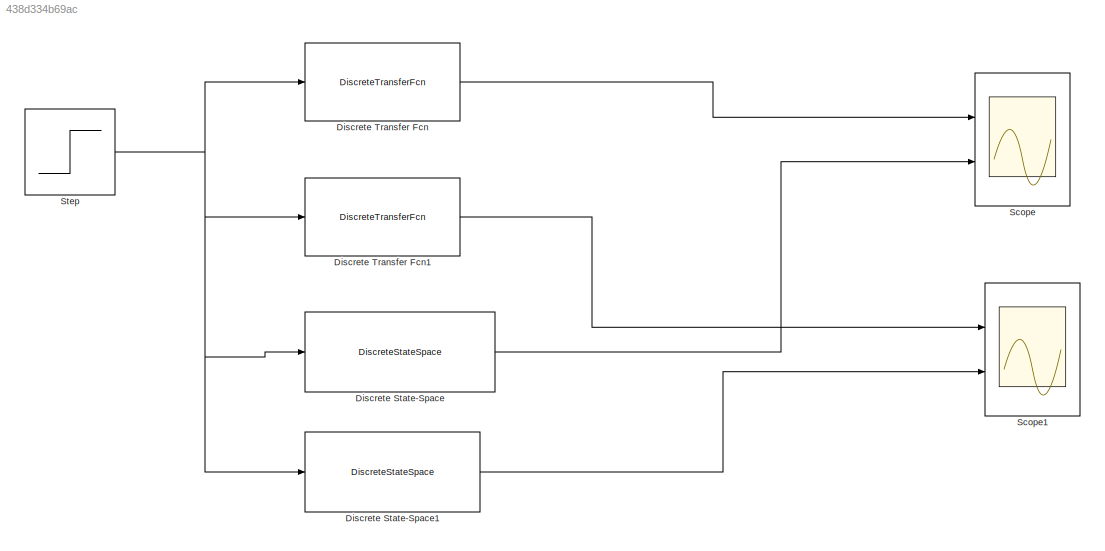
MODEL slx_438d334b69ac
KIND model
CONFIG AbsTol = auto
CONFIG EnableMultiTasking = off
CONFIG FixedStep = auto
CONFIG MaxStep = auto
CONFIG MinStep = auto
CONFIG RelTol = 1e-3
CONFIG SampleTimeConstraint = Unconstrained
CONFIG SolverName = VariableStepAuto
CONFIG StartTime = 0.0
CONFIG StopTime = 1000.0
BLOCK [DiscreteStateSpace] Discrete State-Space
  A = [1.582 -0.5916; 1 0]
  B = [1; 0]
  C = [1.69 1.419]
  D = 0
  SampleTime = -1
BLOCK [DiscreteStateSpace] Discrete State-Space1
  A = 0.9765
  C = 7.6230
  D = 0
BLOCK [DiscreteTransferFcn] Discrete Transfer Fcn
  Denominator = [1 -1.582 0.5916]
  InputPortMap = u0
  Numerator = [1.69 1.419]
  Ports = [1, 1]
BLOCK [DiscreteTransferFcn] Discrete Transfer Fcn1
  Denominator = [1 -0.9765]
  InputPortMap = u0
  Numerator = [7.623]
  Ports = [1, 1]
  SampleTime = 1
BLOCK [Scope] Scope
  Floating = off
  NumInputPorts = 2
  Ports = [2]
  ScopeSpecificationString = Simulink.scopes.TimeScopeBlockCfg('CurrentConfiguration', extmgr.ConfigurationSet(extmgr.Configuration('Core','General UI',true),extmgr.Configuration('Core','Source UI',true),extmgr.Configuration('Sources','WiredSimulink',true),extmgr.Configuration('Visuals','Time Domain',true,'SerializedDisplays',{struct('MinYLimReal','-40.16898','MaxYLimReal','361.52084','YLabelReal','','MinYLimMag','0.00000','M...<+1408ch>
BLOCK [Scope] Scope1
  Floating = off
  NumInputPorts = 2
  Ports = [2]
  ScopeSpecificationString = Simulink.scopes.TimeScopeBlockCfg('CurrentConfiguration', extmgr.ConfigurationSet(extmgr.Configuration('Core','General UI',true),extmgr.Configuration('Core','Source UI',true),extmgr.Configuration('Sources','WiredSimulink',true,'DataLoggingVariableName','ScopeData1'),extmgr.Configuration('Visuals','Time Domain',true,'SerializedDisplays',{struct('MinYLimReal','-40.54787','MaxYLimReal','364.93085','Y...<+1450ch>
BLOCK [Step] Step
  SampleTime = 5
LINE Discrete State-Space1:1 -> Scope1:2
LINE Discrete State-Space:1 -> Scope:2
LINE Discrete Transfer Fcn1:1 -> Scope1:1
LINE Discrete Transfer Fcn:1 -> Scope:1
NET Step:1 -> Discrete State-Space1:1, Discrete State-Space:1, Discrete Transfer Fcn1:1, Discrete Transfer Fcn:1
note: NET lines group one-source signal fan-out (src -> all destinations, sorted); 1:1 wires keep LINE
